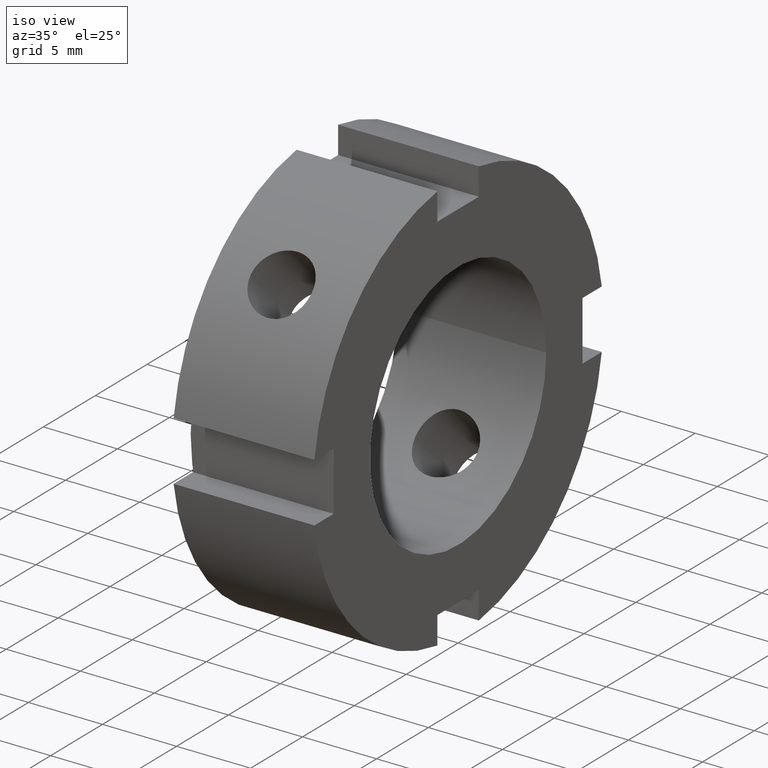
[diagram: clean part render]
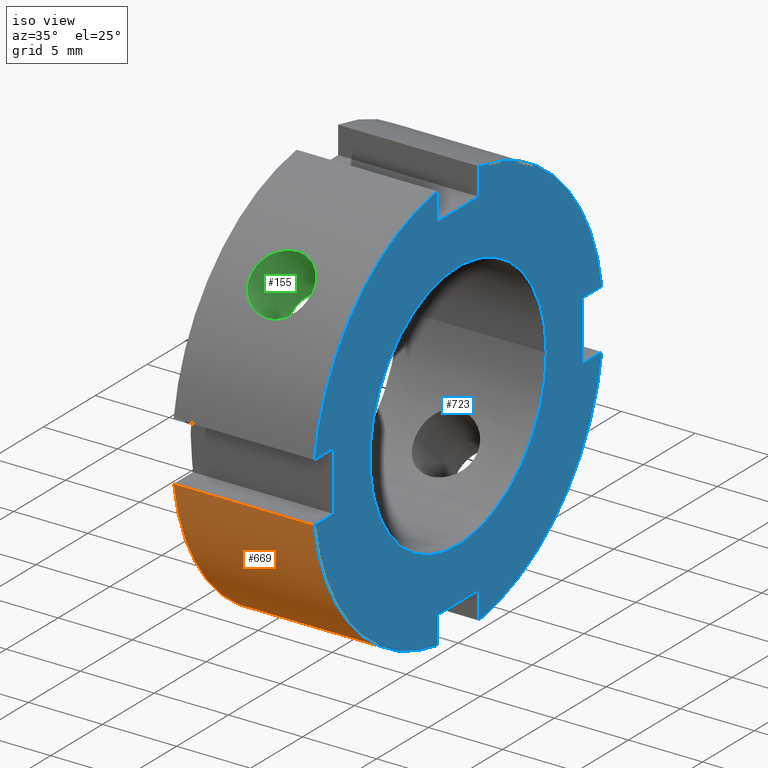
[diagram: same view with three faces highlighted in distinct colors, each labeled with its STEP entity id]
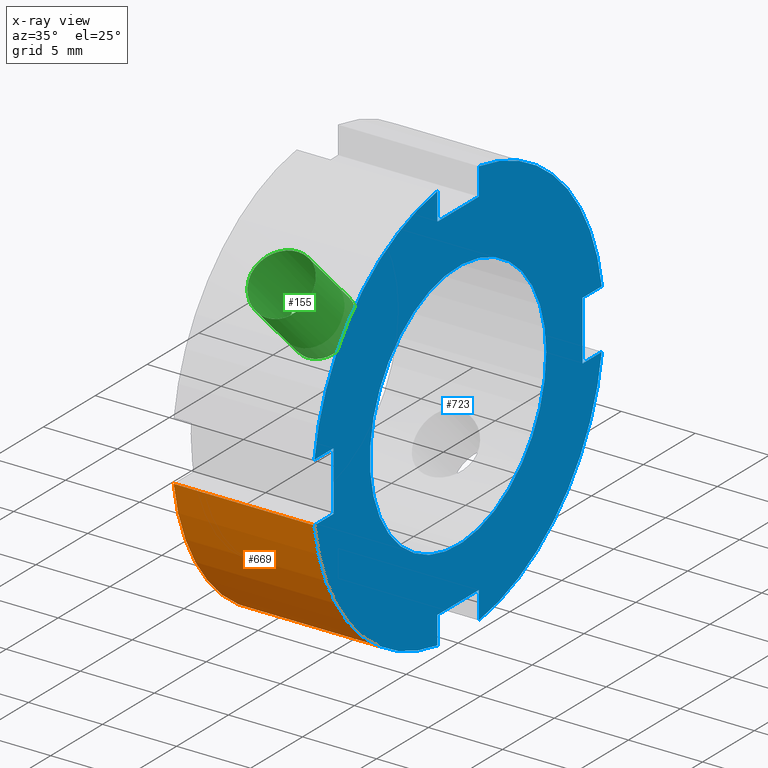
[diagram: x-ray of the same camera — body ghosted, the three highlighted faces saturated]
A machine part, iso view with three faces highlighted in distinct colors.
The next image is the same camera in x-ray (body ghosted, the three faces saturated) — at least one of them is partly hidden behind the body in this view.
Their STEP definitions:

[orange] entity #669 — the highlighted cylindrical surface (partial cylindrical patch) has radius 14 mm, axis along (1, 0, 0).
#251=CARTESIAN_POINT('',(0.499999999999998,-2.000000000000002,-13.856406460551014));
#252=VERTEX_POINT('',#251);
#267=CARTESIAN_POINT('',(9.999999999999996,-2.000000000000002,-13.856406460551016));
#268=VERTEX_POINT('',#267);
#275=CARTESIAN_POINT('',(0.499999999999998,-2.000000000000002,-13.856406460551016));
#276=DIRECTION('',(1.0,0.0,0.0));
#277=VECTOR('',#276,9.499999999999996);
#278=LINE('',#275,#277);
#279=EDGE_CURVE('',#252,#268,#278,.T.);
#391=CARTESIAN_POINT('',(0.499999999999998,-13.856406460551014,-1.999999999999998));
#392=VERTEX_POINT('',#391);
#401=CARTESIAN_POINT('',(9.999999999999996,-13.856406460551016,-1.999999999999998));
#402=VERTEX_POINT('',#401);
#403=CARTESIAN_POINT('',(9.999999999999995,-13.856406460551016,-1.999999999999998));
#404=DIRECTION('',(-1.0,0.0,0.0));
#405=VECTOR('',#404,9.499999999999996);
#406=LINE('',#403,#405);
#407=EDGE_CURVE('',#402,#392,#406,.T.);
#646=CARTESIAN_POINT('',(5.249999999999996,0.0,0.0));
#647=DIRECTION('',(1.0,0.0,0.0));
#648=DIRECTION('',(0.0,1.0,0.0));
#649=AXIS2_PLACEMENT_3D('',#646,#647,#648);
#650=CYLINDRICAL_SURFACE('',#649,14.0);
#651=ORIENTED_EDGE('',*,*,#279,.T.);
#652=CARTESIAN_POINT('',(9.999999999999996,0.0,0.0));
#653=DIRECTION('',(1.0,0.0,0.0));
#654=DIRECTION('',(0.0,1.0,0.0));
#655=AXIS2_PLACEMENT_3D('',#652,#653,#654);
#656=CIRCLE('',#655,14.0);
#657=EDGE_CURVE('',#402,#268,#656,.T.);
#658=ORIENTED_EDGE('',*,*,#657,.F.);
#659=ORIENTED_EDGE('',*,*,#407,.T.);
#660=CARTESIAN_POINT('',(0.499999999999998,0.0,0.0));
#661=DIRECTION('',(1.0,0.0,0.0));
#662=DIRECTION('',(0.0,1.0,0.0));
#663=AXIS2_PLACEMENT_3D('',#660,#661,#662);
#664=CIRCLE('',#663,13.999999999999996);
#665=EDGE_CURVE('',#392,#252,#664,.T.);
#666=ORIENTED_EDGE('',*,*,#665,.T.);
#667=EDGE_LOOP('',(#651,#658,#659,#666));
#668=FACE_OUTER_BOUND('',#667,.T.);
#669=ADVANCED_FACE('',(#668),#650,.T.);

[blue] entity #723 — the highlighted planar face has unit normal (1, 0, 0).
#259=CARTESIAN_POINT('',(9.999999999999996,-2.000000000000002,-12.0));
#260=VERTEX_POINT('',#259);
#267=CARTESIAN_POINT('',(9.999999999999996,-2.000000000000002,-13.856406460551016));
#268=VERTEX_POINT('',#267);
#269=CARTESIAN_POINT('',(9.999999999999996,-2.000000000000002,-13.856406460551016));
#270=DIRECTION('',(0.0,0.0,1.0));
#271=VECTOR('',#270,1.856406460551016);
#272=LINE('',#269,#271);
#273=EDGE_CURVE('',#268,#260,#272,.T.);
#299=CARTESIAN_POINT('',(9.999999999999996,1.999999999999997,-13.856406460551016));
#300=VERTEX_POINT('',#299);
#307=CARTESIAN_POINT('',(9.999999999999996,1.999999999999998,-12.0));
#308=VERTEX_POINT('',#307);
#309=CARTESIAN_POINT('',(9.999999999999996,1.999999999999998,-12.0));
#310=DIRECTION('',(0.0,0.0,-1.0));
#311=VECTOR('',#310,1.856406460551016);
#312=LINE('',#309,#311);
#313=EDGE_CURVE('',#308,#300,#312,.T.);
#336=CARTESIAN_POINT('',(9.999999999999996,-2.000000000000003,-12.0));
#337=DIRECTION('',(0.0,1.0,0.0));
#338=VECTOR('',#337,4.0);
#339=LINE('',#336,#338);
#340=EDGE_CURVE('',#260,#308,#339,.T.);
#361=CARTESIAN_POINT('',(9.999999999999996,-12.0,2.000000000000001));
#362=VERTEX_POINT('',#361);
#369=CARTESIAN_POINT('',(9.999999999999996,-13.856406460551016,2.000000000000001));
#370=VERTEX_POINT('',#369);
#371=CARTESIAN_POINT('',(9.999999999999996,-13.856406460551018,2.000000000000002));
#372=DIRECTION('',(0.0,1.0,0.0));
#373=VECTOR('',#372,1.856406460551018);
#374=LINE('',#371,#373);
#375=EDGE_CURVE('',#370,#362,#374,.T.);
#401=CARTESIAN_POINT('',(9.999999999999996,-13.856406460551016,-1.999999999999998));
#402=VERTEX_POINT('',#401);
#409=CARTESIAN_POINT('',(9.999999999999996,-12.0,-1.999999999999998));
#410=VERTEX_POINT('',#409);
#411=CARTESIAN_POINT('',(9.999999999999996,-12.0,-1.999999999999998));
#412=DIRECTION('',(0.0,-1.0,0.0));
#413=VECTOR('',#412,1.856406460551018);
#414=LINE('',#411,#413);
#415=EDGE_CURVE('',#410,#402,#414,.T.);
#438=CARTESIAN_POINT('',(9.999999999999996,-12.000000000000002,2.000000000000001));
#439=DIRECTION('',(0.0,0.0,-1.0));
#440=VECTOR('',#439,4.000000000000000);
#441=LINE('',#438,#440);
#442=EDGE_CURVE('',#362,#410,#441,.T.);
#463=CARTESIAN_POINT('',(9.999999999999996,2.000000000000001,12.0));
#464=VERTEX_POINT('',#463);
#471=CARTESIAN_POINT('',(9.999999999999996,2.000000000000001,13.856406460551016));
#472=VERTEX_POINT('',#471);
#473=CARTESIAN_POINT('',(9.999999999999996,2.000000000000001,13.856406460551018));
#474=DIRECTION('',(0.0,0.0,-1.0));
#475=VECTOR('',#474,1.856406460551018);
#476=LINE('',#473,#475);
#477=EDGE_CURVE('',#472,#464,#476,.T.);
#503=CARTESIAN_POINT('',(9.999999999999996,-1.999999999999999,13.856406460551016));
#504=VERTEX_POINT('',#503);
#511=CARTESIAN_POINT('',(9.999999999999996,-1.999999999999999,12.0));
#512=VERTEX_POINT('',#511);
#513=CARTESIAN_POINT('',(9.999999999999996,-1.999999999999999,12.0));
#514=DIRECTION('',(0.0,0.0,1.0));
#515=VECTOR('',#514,1.856406460551018);
#516=LINE('',#513,#515);
#517=EDGE_CURVE('',#512,#504,#516,.T.);
#540=CARTESIAN_POINT('',(9.999999999999996,2.000000000000001,12.0));
#541=DIRECTION('',(0.0,-1.0,0.0));
#542=VECTOR('',#541,4.0);
#543=LINE('',#540,#542);
#544=EDGE_CURVE('',#464,#512,#543,.T.);
#556=CARTESIAN_POINT('',(9.999999999999996,13.856406460551016,2.000000000000000));
#557=VERTEX_POINT('',#556);
#558=CARTESIAN_POINT('',(9.999999999999996,0.0,0.0));
#559=DIRECTION('',(1.0,0.0,0.0));
#560=DIRECTION('',(0.0,1.0,0.0));
#561=AXIS2_PLACEMENT_3D('',#558,#559,#560);
#562=CIRCLE('',#561,14.0);
#563=EDGE_CURVE('',#557,#472,#562,.T.);
#589=CARTESIAN_POINT('',(9.999999999999996,0.0,0.0));
#590=DIRECTION('',(1.0,0.0,0.0));
#591=DIRECTION('',(0.0,1.0,0.0));
#592=AXIS2_PLACEMENT_3D('',#589,#590,#591);
#593=CIRCLE('',#592,14.0);
#594=EDGE_CURVE('',#504,#370,#593,.T.);
#625=CARTESIAN_POINT('',(9.999999999999996,13.856406460551016,-2.000000000000000));
#626=VERTEX_POINT('',#625);
#633=CARTESIAN_POINT('',(9.999999999999996,0.0,0.0));
#634=DIRECTION('',(1.0,0.0,0.0));
#635=DIRECTION('',(0.0,1.0,0.0));
#636=AXIS2_PLACEMENT_3D('',#633,#634,#635);
#637=CIRCLE('',#636,14.0);
#638=EDGE_CURVE('',#300,#626,#637,.T.);
#652=CARTESIAN_POINT('',(9.999999999999996,0.0,0.0));
#653=DIRECTION('',(1.0,0.0,0.0));
#654=DIRECTION('',(0.0,1.0,0.0));
#655=AXIS2_PLACEMENT_3D('',#652,#653,#654);
#656=CIRCLE('',#655,14.0);
#657=EDGE_CURVE('',#402,#268,#656,.T.);
#670=CARTESIAN_POINT('',(9.999999999999996,11.250000000000000,0.0));
#671=DIRECTION('',(1.0,0.0,0.0));
#672=DIRECTION('',(0.0,0.0,-1.0));
#673=AXIS2_PLACEMENT_3D('',#670,#671,#672);
#674=PLANE('',#673);
#675=ORIENTED_EDGE('',*,*,#273,.T.);
#676=ORIENTED_EDGE('',*,*,#340,.T.);
#677=ORIENTED_EDGE('',*,*,#313,.T.);
#678=ORIENTED_EDGE('',*,*,#638,.T.);
#679=CARTESIAN_POINT('',(9.999999999999996,12.0,-2.000000000000000));
#680=VERTEX_POINT('',#679);
#681=CARTESIAN_POINT('',(9.999999999999996,13.856406460551016,-2.000000000000000));
#682=DIRECTION('',(0.0,-1.0,0.0));
#683=VECTOR('',#682,1.856406460551018);
#684=LINE('',#681,#683);
#685=EDGE_CURVE('',#626,#680,#684,.T.);
#686=ORIENTED_EDGE('',*,*,#685,.T.);
#687=CARTESIAN_POINT('',(9.999999999999996,12.0,2.000000000000000));
#688=VERTEX_POINT('',#687);
#689=CARTESIAN_POINT('',(9.999999999999996,12.000000000000002,-2.0));
#690=DIRECTION('',(0.0,0.0,1.0));
#691=VECTOR('',#690,4.0);
#692=LINE('',#689,#691);
#693=EDGE_CURVE('',#680,#688,#692,.T.);
#694=ORIENTED_EDGE('',*,*,#693,.T.);
#695=CARTESIAN_POINT('',(9.999999999999996,12.0,2.000000000000000));
#696=DIRECTION('',(0.0,1.0,0.0));
#697=VECTOR('',#696,1.856406460551018);
#698=LINE('',#695,#697);
#699=EDGE_CURVE('',#688,#557,#698,.T.);
#700=ORIENTED_EDGE('',*,*,#699,.T.);
#701=ORIENTED_EDGE('',*,*,#563,.T.);
#702=ORIENTED_EDGE('',*,*,#477,.T.);
#703=ORIENTED_EDGE('',*,*,#544,.T.);
#704=ORIENTED_EDGE('',*,*,#517,.T.);
#705=ORIENTED_EDGE('',*,*,#594,.T.);
#706=ORIENTED_EDGE('',*,*,#375,.T.);
#707=ORIENTED_EDGE('',*,*,#442,.T.);
#708=ORIENTED_EDGE('',*,*,#415,.T.);
#709=ORIENTED_EDGE('',*,*,#657,.T.);
#710=EDGE_LOOP('',(#675,#676,#677,#678,#686,#694,#700,#701,#702,#703,#704,#705,#706,#707,#708,#709));
#711=FACE_OUTER_BOUND('',#710,.T.);
#712=CARTESIAN_POINT('',(9.999999999999996,8.500000000000000,0.0));
#713=VERTEX_POINT('',#712);
#714=CARTESIAN_POINT('',(9.999999999999996,0.0,0.0));
#715=DIRECTION('',(1.0,0.0,0.0));
#716=DIRECTION('',(0.0,1.0,0.0));
#717=AXIS2_PLACEMENT_3D('',#714,#715,#716);
#718=CIRCLE('',#717,8.500000000000000);
#719=EDGE_CURVE('',#713,#713,#718,.T.);
#720=ORIENTED_EDGE('',*,*,#719,.F.);
#721=EDGE_LOOP('',(#720));
#722=FACE_BOUND('',#721,.T.);
#723=ADVANCED_FACE('',(#711,#722),#674,.T.);

[green] entity #155 — the highlighted cylindrical surface (bore or boss wall) has radius 2.067 mm, axis along (0, -0.7071, 0.7071).
#68=CARTESIAN_POINT('',(4.999999999999996,-28.600699292150182,28.600699292150185));
#69=DIRECTION('',(0.0,-0.707106781186547,0.707106781186548));
#70=DIRECTION('',(1.0,0.0,0.0));
#71=AXIS2_PLACEMENT_3D('',#68,#69,#70);
#72=CYLINDRICAL_SURFACE('',#71,2.067000000000000);
#73=CARTESIAN_POINT('',(4.999999999999996,-11.252593521226203,8.329414087801016));
#74=VERTEX_POINT('',#73);
#75=CARTESIAN_POINT('',(4.999999999999996,-11.252593521226203,8.329414087801016));
#76=CARTESIAN_POINT('',(4.740052159031336,-11.252593521226203,8.329414087801016));
#77=CARTESIAN_POINT('',(4.463041377753074,-11.221514672361316,8.371914739360415));
#78=CARTESIAN_POINT('',(3.953890261387744,-11.092818352542370,8.541705265052983));
#79=CARTESIAN_POINT('',(3.721716880066881,-10.994909841772586,8.668675166534598));
#80=CARTESIAN_POINT('',(3.355106684442284,-10.762889677798997,8.955120113317568));
#81=CARTESIAN_POINT('',(3.196091282684646,-10.613178667199410,9.133753678080787));
#82=CARTESIAN_POINT('',(2.985027497940505,-10.273539215695893,9.514168889335176));
#83=CARTESIAN_POINT('',(2.932999999999997,-10.083302811533601,9.715687061689724));
#84=CARTESIAN_POINT('',(2.932999999999997,-9.715687061689726,10.083302811533599));
#85=CARTESIAN_POINT('',(2.985027497940504,-9.514168889335174,10.273539215695891));
#86=CARTESIAN_POINT('',(3.196091282684645,-9.133753678080783,10.613178667199408));
#87=CARTESIAN_POINT('',(3.355106684442282,-8.955120113317566,10.762889677798997));
#88=CARTESIAN_POINT('',(3.721716880066880,-8.668675166534596,10.994909841772589));
#89=CARTESIAN_POINT('',(3.953890261387743,-8.541705265052979,11.092818352542370));
#90=CARTESIAN_POINT('',(4.463041377753073,-8.371914739360411,11.221514672361316));
#91=CARTESIAN_POINT('',(4.740052159031337,-8.329414087801016,11.252593521226203));
#92=CARTESIAN_POINT('',(5.259947840968657,-8.329414087801016,11.252593521226203));
#93=CARTESIAN_POINT('',(5.536958622246919,-8.371914739360411,11.221514672361316));
#94=CARTESIAN_POINT('',(6.046109738612248,-8.541705265052977,11.092818352542370));
#95=CARTESIAN_POINT('',(6.278283119933113,-8.668675166534596,10.994909841772589));
#96=CARTESIAN_POINT('',(6.644893315557711,-8.955120113317566,10.762889677798997));
#97=CARTESIAN_POINT('',(6.803908717315348,-9.133753678080785,10.613178667199408));
#98=CARTESIAN_POINT('',(7.014972502059489,-9.514168889335178,10.273539215695891));
#99=CARTESIAN_POINT('',(7.066999999999997,-9.715687061689726,10.083302811533599));
#100=CARTESIAN_POINT('',(7.066999999999997,-10.083302811533601,9.715687061689724));
#101=CARTESIAN_POINT('',(7.014972502059489,-10.273539215695893,9.514168889335178));
#102=CARTESIAN_POINT('',(6.803908717315347,-10.613178667199410,9.133753678080787));
#103=CARTESIAN_POINT('',(6.644893315557711,-10.762889677798997,8.955120113317568));
#104=CARTESIAN_POINT('',(6.278283119933113,-10.994909841772589,8.668675166534598));
#105=CARTESIAN_POINT('',(6.046109738612246,-11.092818352542370,8.541705265052981));
#106=CARTESIAN_POINT('',(5.536958622246917,-11.221514672361316,8.371914739360415));
#107=CARTESIAN_POINT('',(5.259947840968657,-11.252593521226203,8.329414087801016));
#108=CARTESIAN_POINT('',(4.999999999999997,-11.252593521226203,8.329414087801016));
#109=B_SPLINE_CURVE_WITH_KNOTS('',3,(#75,#76,#77,#78,#79,#80,#81,#82,#83,#84,#85,#86,#87,#88,#89,#90,#91,#92,#93,#94,#95,#96,#97,#98,#99,#100,#101,#102,#103,#104,#105,#106,#107,#108),.UNSPECIFIED.,.T.,.U.,(4,2,2,2,2,2,2,2,2,2,2,2,2,2,2,2,4),(0.0,0.077984352290598,0.155968704581196,0.233951781456870,0.311934858332545,0.389917935208219,0.467901012083894,0.545885364374492,0.623869716665090,0.701854068955688,0.779838421246286,0.857821498121961,0.935804574997635,1.013787651873310,1.091770728748984,1.169755081039582,1.247739433330180),.UNSPECIFIED.);
#110=EDGE_CURVE('',#74,#74,#109,.T.);
#111=ORIENTED_EDGE('',*,*,#110,.F.);
#112=EDGE_LOOP('',(#111));
#113=FACE_OUTER_BOUND('',#112,.T.);
#114=CARTESIAN_POINT('',(4.999999999999996,-7.291577323903539,4.368397890478352));
#115=VERTEX_POINT('',#114);
#116=CARTESIAN_POINT('',(4.999999999999996,-7.291577323903539,4.368397890478351));
#117=CARTESIAN_POINT('',(5.260682569693866,-7.291577323903539,4.368397890478351));
#118=CARTESIAN_POINT('',(5.537990119854693,-7.264239100945437,4.415040310847443));
#119=CARTESIAN_POINT('',(6.046924862036391,-7.149285659321544,4.598854739860256));
#120=CARTESIAN_POINT('',(6.278647519708958,-7.061164608448310,4.735445272315445));
#121=CARTESIAN_POINT('',(6.644509090511093,-6.847618470940909,5.039305530187548));
#122=CARTESIAN_POINT('',(6.803421983457577,-6.707677168684770,5.227083035392055));
#123=CARTESIAN_POINT('',(7.014695757224018,-6.381481873833771,5.620677819256944));
#124=CARTESIAN_POINT('',(7.066999999999997,-6.194715056459430,5.826100223711873));
#125=CARTESIAN_POINT('',(7.066999999999997,-5.826100223711879,6.194715056459426));
#126=CARTESIAN_POINT('',(7.014695757224021,-5.620677819256949,6.381481873833767));
#127=CARTESIAN_POINT('',(6.803421983457579,-5.227083035392058,6.707677168684767));
#128=CARTESIAN_POINT('',(6.644509090511095,-5.039305530187550,6.847618470940908));
#129=CARTESIAN_POINT('',(6.278647519708960,-4.735445272315446,7.061164608448310));
#130=CARTESIAN_POINT('',(6.046924862036391,-4.598854739860256,7.149285659321541));
#131=CARTESIAN_POINT('',(5.537990119854692,-4.415040310847443,7.264239100945434));
#132=CARTESIAN_POINT('',(5.260682569693867,-4.368397890478352,7.291577323903540));
#133=CARTESIAN_POINT('',(4.739317430306126,-4.368397890478352,7.291577323903539));
#134=CARTESIAN_POINT('',(4.462009880145301,-4.415040310847445,7.264239100945435));
#135=CARTESIAN_POINT('',(3.953075137963602,-4.598854739860258,7.149285659321542));
#136=CARTESIAN_POINT('',(3.721352480291035,-4.735445272315446,7.061164608448309));
#137=CARTESIAN_POINT('',(3.355490909488900,-5.039305530187550,6.847618470940908));
#138=CARTESIAN_POINT('',(3.196578016542415,-5.227083035392056,6.707677168684767));
#139=CARTESIAN_POINT('',(2.985304242775972,-5.620677819256948,6.381481873833767));
#140=CARTESIAN_POINT('',(2.932999999999995,-5.826100223711879,6.194715056459426));
#141=CARTESIAN_POINT('',(2.932999999999998,-6.194715056459430,5.826100223711874));
#142=CARTESIAN_POINT('',(2.985304242775974,-6.381481873833770,5.620677819256946));
#143=CARTESIAN_POINT('',(3.196578016542416,-6.707677168684770,5.227083035392055));
#144=CARTESIAN_POINT('',(3.355490909488900,-6.847618470940909,5.039305530187548));
#145=CARTESIAN_POINT('',(3.721352480291034,-7.061164608448310,4.735445272315445));
#146=CARTESIAN_POINT('',(3.953075137963602,-7.149285659321541,4.598854739860257));
#147=CARTESIAN_POINT('',(4.462009880145300,-7.264239100945435,4.415040310847443));
#148=CARTESIAN_POINT('',(4.739317430306126,-7.291577323903539,4.368397890478351));
#149=CARTESIAN_POINT('',(4.999999999999996,-7.291577323903539,4.368397890478351));
#150=B_SPLINE_CURVE_WITH_KNOTS('',3,(#116,#117,#118,#119,#120,#121,#122,#123,#124,#125,#126,#127,#128,#129,#130,#131,#132,#133,#134,#135,#136,#137,#138,#139,#140,#141,#142,#143,#144,#145,#146,#147,#148,#149),.UNSPECIFIED.,.T.,.U.,(4,2,2,2,2,2,2,2,2,2,2,2,2,2,2,2,4),(0.0,0.078204770908161,0.156409541816322,0.234604556180844,0.312799570545365,0.390994584909887,0.469189599274409,0.547394370182570,0.625599141090731,0.703803911998892,0.782008682907054,0.860203697271575,0.938398711636097,1.016593726000619,1.094788740365140,1.172993511273301,1.251198282181462),.UNSPECIFIED.);
#151=EDGE_CURVE('',#115,#115,#150,.T.);
#152=ORIENTED_EDGE('',*,*,#151,.F.);
#153=EDGE_LOOP('',(#152));
#154=FACE_BOUND('',#153,.T.);
#155=ADVANCED_FACE('',(#113,#154),#72,.F.);